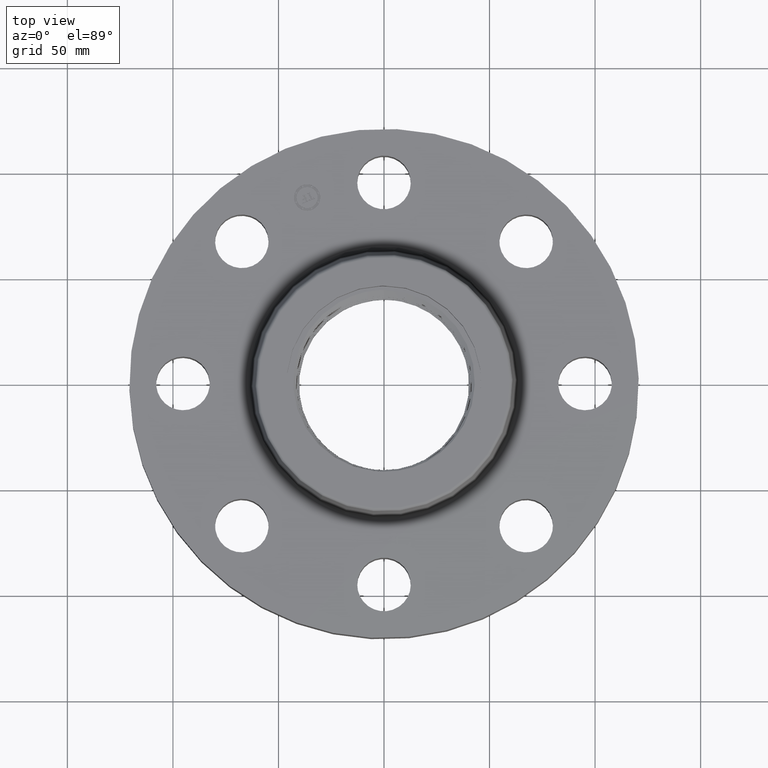
[diagram: clean part render]
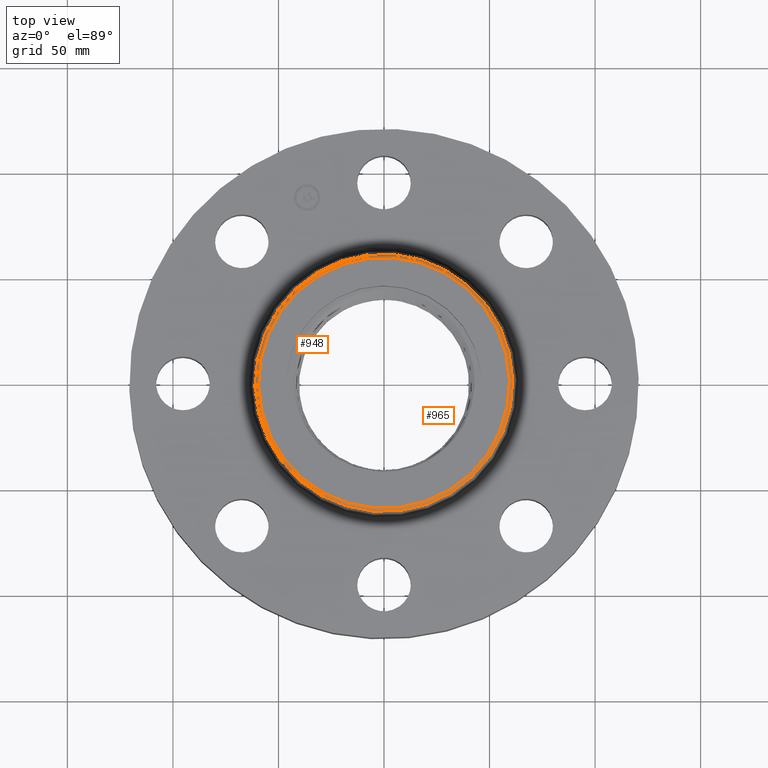
[diagram: same view with one multi-face feature highlighted, each face labeled with its STEP entity id]
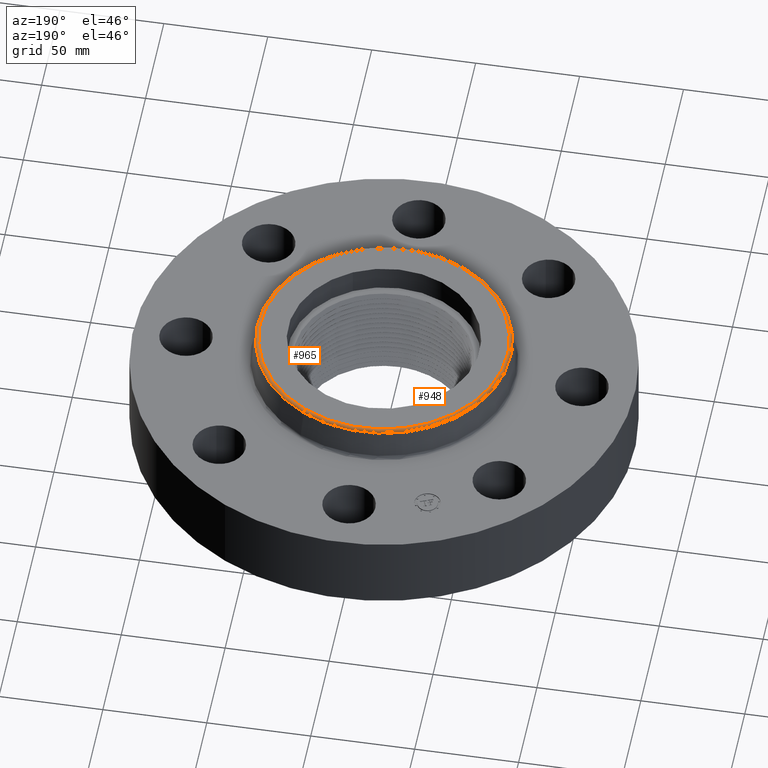
[diagram: same view with one multi-face feature highlighted, each face labeled with its STEP entity id]
A machine part, top view. The highlighted faces form ONE feature: a constant-radius fillet chain: 2 tangent blend faces with common blend radius 1.524 mm. The faces share edges in the B-rep.
A second angle (auxiliary view) of the same feature is appended — it is thin or edge-on in the first view.
Their STEP definitions:
[1] entity #948 (Torus):
#912=AXIS2_PLACEMENT_3D('Torus Axis2P3D',#909,#910,#911) ;
#916=AXIS2_PLACEMENT_3D('Circle Axis2P3D',#914,#915,$) ;
#925=AXIS2_PLACEMENT_3D('Circle Axis2P3D',#923,#924,$) ;
#932=AXIS2_PLACEMENT_3D('Circle Axis2P3D',#930,#931,$) ;
#939=AXIS2_PLACEMENT_3D('Circle Axis2P3D',#937,#938,$) ;
#909=CARTESIAN_POINT('Axis2P3D Location',(0.,0.,2.06000000001)) ;
#914=CARTESIAN_POINT('Axis2P3D Location',(0.,0.,2.07041889067)) ;
#918=CARTESIAN_POINT('Vertex',(-1.15034311043,-2.1056889394,2.07041889067)) ;
#920=CARTESIAN_POINT('Vertex',(1.15034311043,2.1056889394,2.07041889067)) ;
#923=CARTESIAN_POINT('Axis2P3D Location',(-1.12201459119,-2.05383393275,2.06000000001)) ;
#927=CARTESIAN_POINT('Vertex',(-1.12201459119,-2.05383393275,2.12000000001)) ;
#930=CARTESIAN_POINT('Axis2P3D Location',(0.,0.,2.12000000001)) ;
#934=CARTESIAN_POINT('Vertex',(1.12201459119,2.05383393275,2.12000000001)) ;
#937=CARTESIAN_POINT('Axis2P3D Location',(1.12201459119,2.05383393275,2.06000000001)) ;
#910=DIRECTION('Axis2P3D Direction',(0.,0.,-0.0393700787402)) ;
#911=DIRECTION('Axis2P3D XDirection',(0.0188750212049,0.0345504945626,0.)) ;
#915=DIRECTION('Axis2P3D Direction',(0.,0.,-0.0393700787402)) ;
#924=DIRECTION('Axis2P3D Direction',(0.0345504945626,-0.0188750212049,0.)) ;
#931=DIRECTION('Axis2P3D Direction',(0.,0.,-0.0393700787402)) ;
#938=DIRECTION('Axis2P3D Direction',(-0.0345504945626,0.0188750212049,0.)) ;
#943=ORIENTED_EDGE('',*,*,#922,.F.) ;
#944=ORIENTED_EDGE('',*,*,#929,.T.) ;
#945=ORIENTED_EDGE('',*,*,#936,.T.) ;
#946=ORIENTED_EDGE('',*,*,#941,.F.) ;
#948=ADVANCED_FACE('PartBody',(#947),#913,.T.) ;
#917=CIRCLE('generated circle',#916,2.39941975928) ;
#926=CIRCLE('generated circle',#925,0.0600000000002) ;
#933=CIRCLE('generated circle',#932,2.3403312941) ;
#940=CIRCLE('generated circle',#939,0.0600000000002) ;
#913=TOROIDAL_SURFACE('homeo Torus',#912,2.3403312941,0.0600000000002) ;
#922=EDGE_CURVE('',#919,#921,#917,.T.) ;
#929=EDGE_CURVE('',#919,#928,#926,.F.) ;
#936=EDGE_CURVE('',#928,#935,#933,.T.) ;
#941=EDGE_CURVE('',#921,#935,#940,.F.) ;
#942=EDGE_LOOP('',(#943,#944,#945,#946)) ;
#947=FACE_OUTER_BOUND('',#942,.T.) ;
#919=VERTEX_POINT('',#918) ;
#921=VERTEX_POINT('',#920) ;
#928=VERTEX_POINT('',#927) ;
#935=VERTEX_POINT('',#934) ;
[2] entity #965 (Torus):
#912=AXIS2_PLACEMENT_3D('Torus Axis2P3D',#909,#910,#911) ;
#925=AXIS2_PLACEMENT_3D('Circle Axis2P3D',#923,#924,$) ;
#939=AXIS2_PLACEMENT_3D('Circle Axis2P3D',#937,#938,$) ;
#951=AXIS2_PLACEMENT_3D('Circle Axis2P3D',#949,#950,$) ;
#956=AXIS2_PLACEMENT_3D('Circle Axis2P3D',#954,#955,$) ;
#909=CARTESIAN_POINT('Axis2P3D Location',(0.,0.,2.06000000001)) ;
#918=CARTESIAN_POINT('Vertex',(-1.15034311043,-2.1056889394,2.07041889067)) ;
#920=CARTESIAN_POINT('Vertex',(1.15034311043,2.1056889394,2.07041889067)) ;
#923=CARTESIAN_POINT('Axis2P3D Location',(-1.12201459119,-2.05383393275,2.06000000001)) ;
#927=CARTESIAN_POINT('Vertex',(-1.12201459119,-2.05383393275,2.12000000001)) ;
#934=CARTESIAN_POINT('Vertex',(1.12201459119,2.05383393275,2.12000000001)) ;
#937=CARTESIAN_POINT('Axis2P3D Location',(1.12201459119,2.05383393275,2.06000000001)) ;
#949=CARTESIAN_POINT('Axis2P3D Location',(0.,0.,2.07041889067)) ;
#954=CARTESIAN_POINT('Axis2P3D Location',(0.,0.,2.12000000001)) ;
#910=DIRECTION('Axis2P3D Direction',(0.,0.,-0.0393700787402)) ;
#911=DIRECTION('Axis2P3D XDirection',(0.0188750212049,0.0345504945626,0.)) ;
#924=DIRECTION('Axis2P3D Direction',(0.0345504945626,-0.0188750212049,0.)) ;
#938=DIRECTION('Axis2P3D Direction',(-0.0345504945626,0.0188750212049,0.)) ;
#950=DIRECTION('Axis2P3D Direction',(0.,0.,-0.0393700787402)) ;
#955=DIRECTION('Axis2P3D Direction',(0.,0.,-0.0393700787402)) ;
#960=ORIENTED_EDGE('',*,*,#953,.F.) ;
#961=ORIENTED_EDGE('',*,*,#941,.T.) ;
#962=ORIENTED_EDGE('',*,*,#958,.T.) ;
#963=ORIENTED_EDGE('',*,*,#929,.F.) ;
#965=ADVANCED_FACE('PartBody',(#964),#913,.T.) ;
#926=CIRCLE('generated circle',#925,0.0600000000002) ;
#940=CIRCLE('generated circle',#939,0.0600000000002) ;
#952=CIRCLE('generated circle',#951,2.39941975928) ;
#957=CIRCLE('generated circle',#956,2.3403312941) ;
#913=TOROIDAL_SURFACE('homeo Torus',#912,2.3403312941,0.0600000000002) ;
#929=EDGE_CURVE('',#919,#928,#926,.F.) ;
#941=EDGE_CURVE('',#921,#935,#940,.F.) ;
#953=EDGE_CURVE('',#921,#919,#952,.T.) ;
#958=EDGE_CURVE('',#935,#928,#957,.T.) ;
#959=EDGE_LOOP('',(#960,#961,#962,#963)) ;
#964=FACE_OUTER_BOUND('',#959,.T.) ;
#919=VERTEX_POINT('',#918) ;
#921=VERTEX_POINT('',#920) ;
#928=VERTEX_POINT('',#927) ;
#935=VERTEX_POINT('',#934) ;